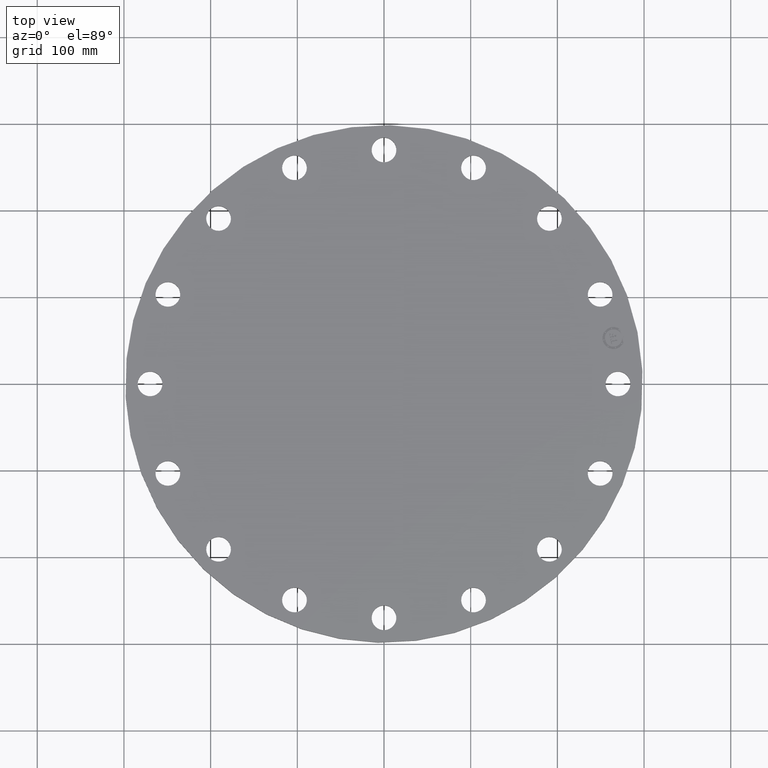
[diagram: clean part render]
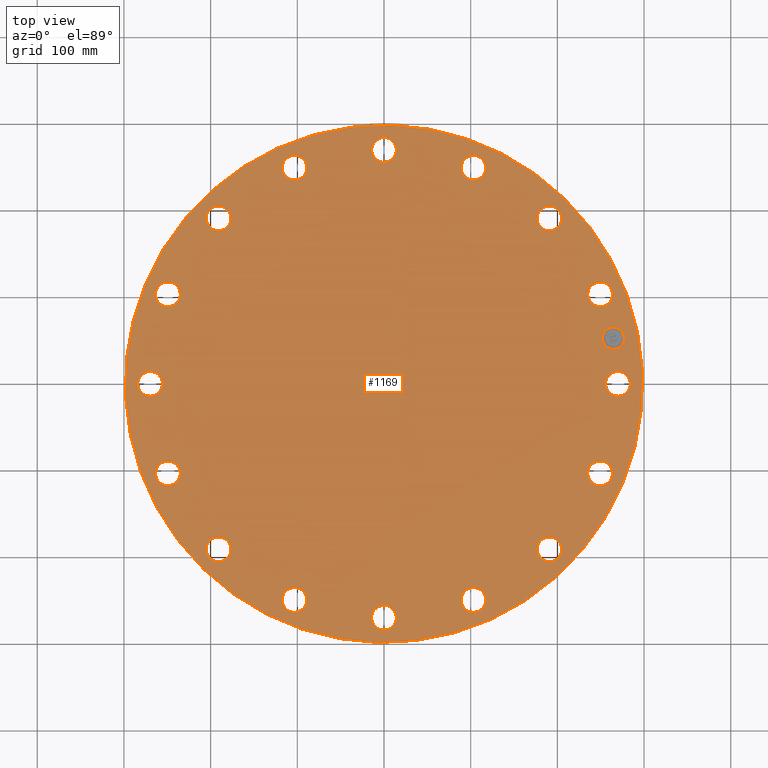
[diagram: same view with one face highlighted and labeled with its STEP entity id]
A machine part, top view. The second image highlights one B-rep face of the part: STEP entity #1169.
In plain terms, the highlighted planar face has unit normal (0, 0, 1).
Its self-contained STEP definition (entity closure, byte-faithful):
#65=AXIS2_PLACEMENT_3D('Circle Axis2P3D',#63,#64,$) ;
#82=AXIS2_PLACEMENT_3D('Circle Axis2P3D',#80,#81,$) ;
#108=AXIS2_PLACEMENT_3D('Circle Axis2P3D',#106,#107,$) ;
#134=AXIS2_PLACEMENT_3D('Circle Axis2P3D',#132,#133,$) ;
#454=AXIS2_PLACEMENT_3D('Circle Axis2P3D',#452,#453,$) ;
#466=AXIS2_PLACEMENT_3D('Circle Axis2P3D',#464,#465,$) ;
#497=AXIS2_PLACEMENT_3D('Circle Axis2P3D',#495,#496,$) ;
#509=AXIS2_PLACEMENT_3D('Circle Axis2P3D',#507,#508,$) ;
#540=AXIS2_PLACEMENT_3D('Circle Axis2P3D',#538,#539,$) ;
#552=AXIS2_PLACEMENT_3D('Circle Axis2P3D',#550,#551,$) ;
#583=AXIS2_PLACEMENT_3D('Circle Axis2P3D',#581,#582,$) ;
#595=AXIS2_PLACEMENT_3D('Circle Axis2P3D',#593,#594,$) ;
#626=AXIS2_PLACEMENT_3D('Circle Axis2P3D',#624,#625,$) ;
#638=AXIS2_PLACEMENT_3D('Circle Axis2P3D',#636,#637,$) ;
#669=AXIS2_PLACEMENT_3D('Circle Axis2P3D',#667,#668,$) ;
#681=AXIS2_PLACEMENT_3D('Circle Axis2P3D',#679,#680,$) ;
#712=AXIS2_PLACEMENT_3D('Circle Axis2P3D',#710,#711,$) ;
#724=AXIS2_PLACEMENT_3D('Circle Axis2P3D',#722,#723,$) ;
#755=AXIS2_PLACEMENT_3D('Circle Axis2P3D',#753,#754,$) ;
#767=AXIS2_PLACEMENT_3D('Circle Axis2P3D',#765,#766,$) ;
#798=AXIS2_PLACEMENT_3D('Circle Axis2P3D',#796,#797,$) ;
#810=AXIS2_PLACEMENT_3D('Circle Axis2P3D',#808,#809,$) ;
#841=AXIS2_PLACEMENT_3D('Circle Axis2P3D',#839,#840,$) ;
#853=AXIS2_PLACEMENT_3D('Circle Axis2P3D',#851,#852,$) ;
#884=AXIS2_PLACEMENT_3D('Circle Axis2P3D',#882,#883,$) ;
#896=AXIS2_PLACEMENT_3D('Circle Axis2P3D',#894,#895,$) ;
#927=AXIS2_PLACEMENT_3D('Circle Axis2P3D',#925,#926,$) ;
#939=AXIS2_PLACEMENT_3D('Circle Axis2P3D',#937,#938,$) ;
#970=AXIS2_PLACEMENT_3D('Circle Axis2P3D',#968,#969,$) ;
#982=AXIS2_PLACEMENT_3D('Circle Axis2P3D',#980,#981,$) ;
#1013=AXIS2_PLACEMENT_3D('Circle Axis2P3D',#1011,#1012,$) ;
#1025=AXIS2_PLACEMENT_3D('Circle Axis2P3D',#1023,#1024,$) ;
#1056=AXIS2_PLACEMENT_3D('Circle Axis2P3D',#1054,#1055,$) ;
#1068=AXIS2_PLACEMENT_3D('Circle Axis2P3D',#1066,#1067,$) ;
#1081=AXIS2_PLACEMENT_3D('Plane Axis2P3D',#1078,#1079,#1080) ;
#1153=AXIS2_PLACEMENT_3D('Circle Axis2P3D',#1151,#1152,$) ;
#1162=AXIS2_PLACEMENT_3D('Circle Axis2P3D',#1160,#1161,$) ;
#46=CARTESIAN_POINT('Vertex',(10.131359809,0.269676865466,0.892000000004)) ;
#60=CARTESIAN_POINT('Vertex',(11.1186401911,-0.269676865466,0.892000000004)) ;
#63=CARTESIAN_POINT('Axis2P3D Location',(10.625,0.,0.892000000004)) ;
#80=CARTESIAN_POINT('Axis2P3D Location',(10.625,0.,0.892000000004)) ;
#103=CARTESIAN_POINT('Vertex',(10.3115951023,5.63325007862,0.892000000004)) ;
#106=CARTESIAN_POINT('Axis2P3D Location',(0.,0.,0.892000000004)) ;
#110=CARTESIAN_POINT('Vertex',(-10.3115951023,-5.63325007862,0.892000000004)) ;
#132=CARTESIAN_POINT('Axis2P3D Location',(0.,0.,0.892000000004)) ;
#442=CARTESIAN_POINT('Vertex',(9.25695509552,4.12625248262,0.892000000004)) ;
#449=CARTESIAN_POINT('Vertex',(10.3754849704,4.00577045517,0.892000000004)) ;
#452=CARTESIAN_POINT('Axis2P3D Location',(9.81622003297,4.0660114689,0.892000000004)) ;
#464=CARTESIAN_POINT('Axis2P3D Location',(9.81622003297,4.0660114689,0.892000000004)) ;
#485=CARTESIAN_POINT('Vertex',(6.97326288327,7.35464356387,0.892000000004)) ;
#492=CARTESIAN_POINT('Vertex',(8.05275621701,7.67137553641,0.892000000004)) ;
#495=CARTESIAN_POINT('Axis2P3D Location',(7.51300955014,7.51300955014,0.892000000004)) ;
#507=CARTESIAN_POINT('Axis2P3D Location',(7.51300955014,7.51300955014,0.892000000004)) ;
#528=CARTESIAN_POINT('Vertex',(3.62795460983,9.46335683253,0.892000000004)) ;
#535=CARTESIAN_POINT('Vertex',(4.50406832796,10.1690832334,0.892000000004)) ;
#538=CARTESIAN_POINT('Axis2P3D Location',(4.0660114689,9.81622003297,0.892000000004)) ;
#550=CARTESIAN_POINT('Axis2P3D Location',(4.0660114689,9.81622003297,0.892000000004)) ;
#571=CARTESIAN_POINT('Vertex',(-0.269676865466,10.131359809,0.892000000004)) ;
#578=CARTESIAN_POINT('Vertex',(0.269676865466,11.1186401911,0.892000000004)) ;
#581=CARTESIAN_POINT('Axis2P3D Location',(-1.58733626436E-015,10.625,0.892000000004)) ;
#593=CARTESIAN_POINT('Axis2P3D Location',(-1.58733626436E-015,10.625,0.892000000004)) ;
#614=CARTESIAN_POINT('Vertex',(-4.12625248262,9.25695509552,0.892000000004)) ;
#621=CARTESIAN_POINT('Vertex',(-4.00577045517,10.3754849704,0.892000000004)) ;
#624=CARTESIAN_POINT('Axis2P3D Location',(-4.0660114689,9.81622003297,0.892000000004)) ;
#636=CARTESIAN_POINT('Axis2P3D Location',(-4.0660114689,9.81622003297,0.892000000004)) ;
#657=CARTESIAN_POINT('Vertex',(-7.35464356387,6.97326288327,0.892000000004)) ;
#664=CARTESIAN_POINT('Vertex',(-7.67137553641,8.05275621701,0.892000000004)) ;
#667=CARTESIAN_POINT('Axis2P3D Location',(-7.51300955014,7.51300955014,0.892000000004)) ;
#679=CARTESIAN_POINT('Axis2P3D Location',(-7.51300955014,7.51300955014,0.892000000004)) ;
#700=CARTESIAN_POINT('Vertex',(-9.46335683253,3.62795460983,0.892000000004)) ;
#707=CARTESIAN_POINT('Vertex',(-10.1690832334,4.50406832796,0.892000000004)) ;
#710=CARTESIAN_POINT('Axis2P3D Location',(-9.81622003297,4.0660114689,0.892000000004)) ;
#722=CARTESIAN_POINT('Axis2P3D Location',(-9.81622003297,4.0660114689,0.892000000004)) ;
#743=CARTESIAN_POINT('Vertex',(-10.131359809,-0.269676865466,0.892000000004)) ;
#750=CARTESIAN_POINT('Vertex',(-11.1186401911,0.269676865466,0.892000000004)) ;
#753=CARTESIAN_POINT('Axis2P3D Location',(-10.625,1.3011872241E-015,0.892000000004)) ;
#765=CARTESIAN_POINT('Axis2P3D Location',(-10.625,1.3011872241E-015,0.892000000004)) ;
#786=CARTESIAN_POINT('Vertex',(-9.25695509552,-4.12625248262,0.892000000004)) ;
#793=CARTESIAN_POINT('Vertex',(-10.3754849704,-4.00577045517,0.892000000004)) ;
#796=CARTESIAN_POINT('Axis2P3D Location',(-9.81622003297,-4.0660114689,0.892000000004)) ;
#808=CARTESIAN_POINT('Axis2P3D Location',(-9.81622003297,-4.0660114689,0.892000000004)) ;
#829=CARTESIAN_POINT('Vertex',(-6.97326288327,-7.35464356387,0.892000000004)) ;
#836=CARTESIAN_POINT('Vertex',(-8.05275621701,-7.67137553641,0.892000000004)) ;
#839=CARTESIAN_POINT('Axis2P3D Location',(-7.51300955014,-7.51300955014,0.892000000004)) ;
#851=CARTESIAN_POINT('Axis2P3D Location',(-7.51300955014,-7.51300955014,0.892000000004)) ;
#872=CARTESIAN_POINT('Vertex',(-3.62795460983,-9.46335683253,0.892000000004)) ;
#879=CARTESIAN_POINT('Vertex',(-4.50406832796,-10.1690832334,0.892000000004)) ;
#882=CARTESIAN_POINT('Axis2P3D Location',(-4.0660114689,-9.81622003297,0.892000000004)) ;
#894=CARTESIAN_POINT('Axis2P3D Location',(-4.0660114689,-9.81622003297,0.892000000004)) ;
#915=CARTESIAN_POINT('Vertex',(0.269676865466,-10.131359809,0.892000000004)) ;
#922=CARTESIAN_POINT('Vertex',(-0.269676865466,-11.1186401911,0.892000000004)) ;
#925=CARTESIAN_POINT('Axis2P3D Location',(-1.95178083615E-015,-10.625,0.892000000004)) ;
#937=CARTESIAN_POINT('Axis2P3D Location',(-1.95178083615E-015,-10.625,0.892000000004)) ;
#958=CARTESIAN_POINT('Vertex',(4.12625248262,-9.25695509552,0.892000000004)) ;
#965=CARTESIAN_POINT('Vertex',(4.00577045517,-10.3754849704,0.892000000004)) ;
#968=CARTESIAN_POINT('Axis2P3D Location',(4.0660114689,-9.81622003297,0.892000000004)) ;
#980=CARTESIAN_POINT('Axis2P3D Location',(4.0660114689,-9.81622003297,0.892000000004)) ;
#1001=CARTESIAN_POINT('Vertex',(7.35464356387,-6.97326288327,0.892000000004)) ;
#1008=CARTESIAN_POINT('Vertex',(7.67137553641,-8.05275621701,0.892000000004)) ;
#1011=CARTESIAN_POINT('Axis2P3D Location',(7.51300955014,-7.51300955014,0.892000000004)) ;
#1023=CARTESIAN_POINT('Axis2P3D Location',(7.51300955014,-7.51300955014,0.892000000004)) ;
#1044=CARTESIAN_POINT('Vertex',(9.46335683253,-3.62795460983,0.892000000004)) ;
#1051=CARTESIAN_POINT('Vertex',(10.1690832334,-4.50406832796,0.892000000004)) ;
#1054=CARTESIAN_POINT('Axis2P3D Location',(9.81622003297,-4.0660114689,0.892000000004)) ;
#1066=CARTESIAN_POINT('Axis2P3D Location',(9.81622003297,-4.0660114689,0.892000000004)) ;
#1078=CARTESIAN_POINT('Axis2P3D Location',(11.75,0.,0.892000000004)) ;
#1151=CARTESIAN_POINT('Axis2P3D Location',(10.4208436043,2.07283467143,0.892000000004)) ;
#1155=CARTESIAN_POINT('Vertex',(10.3232984443,2.56322730673,0.892000000004)) ;
#1157=CARTESIAN_POINT('Vertex',(10.5183887644,1.58244203613,0.892000000004)) ;
#1160=CARTESIAN_POINT('Axis2P3D Location',(10.4208436043,2.07283467143,0.892000000004)) ;
#64=DIRECTION('Axis2P3D Direction',(0.,-0.,-0.0393700787402)) ;
#81=DIRECTION('Axis2P3D Direction',(0.,-0.,-0.0393700787402)) ;
#107=DIRECTION('Axis2P3D Direction',(0.,0.,0.0393700787402)) ;
#133=DIRECTION('Axis2P3D Direction',(0.,0.,0.0393700787402)) ;
#453=DIRECTION('Axis2P3D Direction',(0.,0.,-0.0393700787402)) ;
#465=DIRECTION('Axis2P3D Direction',(0.,0.,-0.0393700787402)) ;
#496=DIRECTION('Axis2P3D Direction',(0.,0.,-0.0393700787402)) ;
#508=DIRECTION('Axis2P3D Direction',(0.,0.,-0.0393700787402)) ;
#539=DIRECTION('Axis2P3D Direction',(0.,0.,-0.0393700787402)) ;
#551=DIRECTION('Axis2P3D Direction',(0.,0.,-0.0393700787402)) ;
#582=DIRECTION('Axis2P3D Direction',(0.,0.,-0.0393700787402)) ;
#594=DIRECTION('Axis2P3D Direction',(0.,0.,-0.0393700787402)) ;
#625=DIRECTION('Axis2P3D Direction',(0.,0.,-0.0393700787402)) ;
#637=DIRECTION('Axis2P3D Direction',(0.,0.,-0.0393700787402)) ;
#668=DIRECTION('Axis2P3D Direction',(0.,0.,-0.0393700787402)) ;
#680=DIRECTION('Axis2P3D Direction',(0.,0.,-0.0393700787402)) ;
#711=DIRECTION('Axis2P3D Direction',(0.,0.,-0.0393700787402)) ;
#723=DIRECTION('Axis2P3D Direction',(0.,0.,-0.0393700787402)) ;
#754=DIRECTION('Axis2P3D Direction',(0.,0.,-0.0393700787402)) ;
#766=DIRECTION('Axis2P3D Direction',(0.,0.,-0.0393700787402)) ;
#797=DIRECTION('Axis2P3D Direction',(-0.,0.,-0.0393700787402)) ;
#809=DIRECTION('Axis2P3D Direction',(-0.,0.,-0.0393700787402)) ;
#840=DIRECTION('Axis2P3D Direction',(-0.,0.,-0.0393700787402)) ;
#852=DIRECTION('Axis2P3D Direction',(-0.,0.,-0.0393700787402)) ;
#883=DIRECTION('Axis2P3D Direction',(-0.,0.,-0.0393700787402)) ;
#895=DIRECTION('Axis2P3D Direction',(-0.,0.,-0.0393700787402)) ;
#926=DIRECTION('Axis2P3D Direction',(-0.,0.,-0.0393700787402)) ;
#938=DIRECTION('Axis2P3D Direction',(-0.,0.,-0.0393700787402)) ;
#969=DIRECTION('Axis2P3D Direction',(0.,-0.,-0.0393700787402)) ;
#981=DIRECTION('Axis2P3D Direction',(0.,-0.,-0.0393700787402)) ;
#1012=DIRECTION('Axis2P3D Direction',(0.,-0.,-0.0393700787402)) ;
#1024=DIRECTION('Axis2P3D Direction',(0.,-0.,-0.0393700787402)) ;
#1055=DIRECTION('Axis2P3D Direction',(0.,-0.,-0.0393700787402)) ;
#1067=DIRECTION('Axis2P3D Direction',(0.,-0.,-0.0393700787402)) ;
#1079=DIRECTION('Axis2P3D Direction',(0.,0.,0.0393700787402)) ;
#1080=DIRECTION('Axis2P3D XDirection',(0.0393700787402,0.,0.)) ;
#1152=DIRECTION('Axis2P3D Direction',(0.,0.,0.0393700787402)) ;
#1161=DIRECTION('Axis2P3D Direction',(0.,0.,0.0393700787402)) ;
#1084=ORIENTED_EDGE('',*,*,#112,.T.) ;
#1085=ORIENTED_EDGE('',*,*,#136,.T.) ;
#1088=ORIENTED_EDGE('',*,*,#84,.F.) ;
#1089=ORIENTED_EDGE('',*,*,#67,.F.) ;
#1092=ORIENTED_EDGE('',*,*,#456,.F.) ;
#1093=ORIENTED_EDGE('',*,*,#468,.F.) ;
#1096=ORIENTED_EDGE('',*,*,#499,.F.) ;
#1097=ORIENTED_EDGE('',*,*,#511,.F.) ;
#1100=ORIENTED_EDGE('',*,*,#542,.F.) ;
#1101=ORIENTED_EDGE('',*,*,#554,.F.) ;
#1104=ORIENTED_EDGE('',*,*,#585,.F.) ;
#1105=ORIENTED_EDGE('',*,*,#597,.F.) ;
#1108=ORIENTED_EDGE('',*,*,#628,.F.) ;
#1109=ORIENTED_EDGE('',*,*,#640,.F.) ;
#1112=ORIENTED_EDGE('',*,*,#671,.F.) ;
#1113=ORIENTED_EDGE('',*,*,#683,.F.) ;
#1116=ORIENTED_EDGE('',*,*,#714,.F.) ;
#1117=ORIENTED_EDGE('',*,*,#726,.F.) ;
#1120=ORIENTED_EDGE('',*,*,#757,.F.) ;
#1121=ORIENTED_EDGE('',*,*,#769,.F.) ;
#1124=ORIENTED_EDGE('',*,*,#800,.F.) ;
#1125=ORIENTED_EDGE('',*,*,#812,.F.) ;
#1128=ORIENTED_EDGE('',*,*,#843,.F.) ;
#1129=ORIENTED_EDGE('',*,*,#855,.F.) ;
#1132=ORIENTED_EDGE('',*,*,#886,.F.) ;
#1133=ORIENTED_EDGE('',*,*,#898,.F.) ;
#1136=ORIENTED_EDGE('',*,*,#929,.F.) ;
#1137=ORIENTED_EDGE('',*,*,#941,.F.) ;
#1140=ORIENTED_EDGE('',*,*,#972,.F.) ;
#1141=ORIENTED_EDGE('',*,*,#984,.F.) ;
#1144=ORIENTED_EDGE('',*,*,#1015,.F.) ;
#1145=ORIENTED_EDGE('',*,*,#1027,.F.) ;
#1148=ORIENTED_EDGE('',*,*,#1058,.F.) ;
#1149=ORIENTED_EDGE('',*,*,#1070,.F.) ;
#1166=ORIENTED_EDGE('',*,*,#1159,.F.) ;
#1167=ORIENTED_EDGE('',*,*,#1164,.F.) ;
#1090=FACE_BOUND('',#1087,.T.) ;
#1094=FACE_BOUND('',#1091,.T.) ;
#1098=FACE_BOUND('',#1095,.T.) ;
#1102=FACE_BOUND('',#1099,.T.) ;
#1106=FACE_BOUND('',#1103,.T.) ;
#1110=FACE_BOUND('',#1107,.T.) ;
#1114=FACE_BOUND('',#1111,.T.) ;
#1118=FACE_BOUND('',#1115,.T.) ;
#1122=FACE_BOUND('',#1119,.T.) ;
#1126=FACE_BOUND('',#1123,.T.) ;
#1130=FACE_BOUND('',#1127,.T.) ;
#1134=FACE_BOUND('',#1131,.T.) ;
#1138=FACE_BOUND('',#1135,.T.) ;
#1142=FACE_BOUND('',#1139,.T.) ;
#1146=FACE_BOUND('',#1143,.T.) ;
#1150=FACE_BOUND('',#1147,.T.) ;
#1168=FACE_BOUND('',#1165,.T.) ;
#1169=ADVANCED_FACE('PartBody',(#1086,#1090,#1094,#1098,#1102,#1106,#1110,#1114,#1118,#1122,#1126,#1130,#1134,#1138,#1142,#1146,#1150,#1168),#1082,.T.) ;
#66=CIRCLE('generated circle',#65,0.562500000002) ;
#83=CIRCLE('generated circle',#82,0.562500000002) ;
#109=CIRCLE('generated circle',#108,11.75) ;
#135=CIRCLE('generated circle',#134,11.75) ;
#455=CIRCLE('generated circle',#454,0.562500000002) ;
#467=CIRCLE('generated circle',#466,0.562500000002) ;
#498=CIRCLE('generated circle',#497,0.562500000002) ;
#510=CIRCLE('generated circle',#509,0.562500000002) ;
#541=CIRCLE('generated circle',#540,0.562500000002) ;
#553=CIRCLE('generated circle',#552,0.562500000002) ;
#584=CIRCLE('generated circle',#583,0.562500000002) ;
#596=CIRCLE('generated circle',#595,0.562500000002) ;
#627=CIRCLE('generated circle',#626,0.562500000002) ;
#639=CIRCLE('generated circle',#638,0.562500000002) ;
#670=CIRCLE('generated circle',#669,0.562500000002) ;
#682=CIRCLE('generated circle',#681,0.562500000002) ;
#713=CIRCLE('generated circle',#712,0.562500000002) ;
#725=CIRCLE('generated circle',#724,0.562500000002) ;
#756=CIRCLE('generated circle',#755,0.562500000002) ;
#768=CIRCLE('generated circle',#767,0.562500000002) ;
#799=CIRCLE('generated circle',#798,0.562500000002) ;
#811=CIRCLE('generated circle',#810,0.562500000002) ;
#842=CIRCLE('generated circle',#841,0.562500000002) ;
#854=CIRCLE('generated circle',#853,0.562500000002) ;
#885=CIRCLE('generated circle',#884,0.562500000002) ;
#897=CIRCLE('generated circle',#896,0.562500000002) ;
#928=CIRCLE('generated circle',#927,0.562500000002) ;
#940=CIRCLE('generated circle',#939,0.562500000002) ;
#971=CIRCLE('generated circle',#970,0.562500000002) ;
#983=CIRCLE('generated circle',#982,0.562500000002) ;
#1014=CIRCLE('generated circle',#1013,0.562500000002) ;
#1026=CIRCLE('generated circle',#1025,0.562500000002) ;
#1057=CIRCLE('generated circle',#1056,0.562500000002) ;
#1069=CIRCLE('generated circle',#1068,0.562500000002) ;
#1154=CIRCLE('generated circle',#1153,0.499999995002) ;
#1163=CIRCLE('generated circle',#1162,0.499999995002) ;
#67=EDGE_CURVE('',#61,#47,#66,.F.) ;
#84=EDGE_CURVE('',#47,#61,#83,.F.) ;
#112=EDGE_CURVE('',#111,#104,#109,.T.) ;
#136=EDGE_CURVE('',#104,#111,#135,.T.) ;
#456=EDGE_CURVE('',#450,#443,#455,.F.) ;
#468=EDGE_CURVE('',#443,#450,#467,.F.) ;
#499=EDGE_CURVE('',#493,#486,#498,.F.) ;
#511=EDGE_CURVE('',#486,#493,#510,.F.) ;
#542=EDGE_CURVE('',#536,#529,#541,.F.) ;
#554=EDGE_CURVE('',#529,#536,#553,.F.) ;
#585=EDGE_CURVE('',#579,#572,#584,.F.) ;
#597=EDGE_CURVE('',#572,#579,#596,.F.) ;
#628=EDGE_CURVE('',#622,#615,#627,.F.) ;
#640=EDGE_CURVE('',#615,#622,#639,.F.) ;
#671=EDGE_CURVE('',#665,#658,#670,.F.) ;
#683=EDGE_CURVE('',#658,#665,#682,.F.) ;
#714=EDGE_CURVE('',#708,#701,#713,.F.) ;
#726=EDGE_CURVE('',#701,#708,#725,.F.) ;
#757=EDGE_CURVE('',#751,#744,#756,.F.) ;
#769=EDGE_CURVE('',#744,#751,#768,.F.) ;
#800=EDGE_CURVE('',#794,#787,#799,.F.) ;
#812=EDGE_CURVE('',#787,#794,#811,.F.) ;
#843=EDGE_CURVE('',#837,#830,#842,.F.) ;
#855=EDGE_CURVE('',#830,#837,#854,.F.) ;
#886=EDGE_CURVE('',#880,#873,#885,.F.) ;
#898=EDGE_CURVE('',#873,#880,#897,.F.) ;
#929=EDGE_CURVE('',#923,#916,#928,.F.) ;
#941=EDGE_CURVE('',#916,#923,#940,.F.) ;
#972=EDGE_CURVE('',#966,#959,#971,.F.) ;
#984=EDGE_CURVE('',#959,#966,#983,.F.) ;
#1015=EDGE_CURVE('',#1009,#1002,#1014,.F.) ;
#1027=EDGE_CURVE('',#1002,#1009,#1026,.F.) ;
#1058=EDGE_CURVE('',#1052,#1045,#1057,.F.) ;
#1070=EDGE_CURVE('',#1045,#1052,#1069,.F.) ;
#1159=EDGE_CURVE('',#1156,#1158,#1154,.T.) ;
#1164=EDGE_CURVE('',#1158,#1156,#1163,.T.) ;
#1083=EDGE_LOOP('',(#1084,#1085)) ;
#1087=EDGE_LOOP('',(#1088,#1089)) ;
#1091=EDGE_LOOP('',(#1092,#1093)) ;
#1095=EDGE_LOOP('',(#1096,#1097)) ;
#1099=EDGE_LOOP('',(#1100,#1101)) ;
#1103=EDGE_LOOP('',(#1104,#1105)) ;
#1107=EDGE_LOOP('',(#1108,#1109)) ;
#1111=EDGE_LOOP('',(#1112,#1113)) ;
#1115=EDGE_LOOP('',(#1116,#1117)) ;
#1119=EDGE_LOOP('',(#1120,#1121)) ;
#1123=EDGE_LOOP('',(#1124,#1125)) ;
#1127=EDGE_LOOP('',(#1128,#1129)) ;
#1131=EDGE_LOOP('',(#1132,#1133)) ;
#1135=EDGE_LOOP('',(#1136,#1137)) ;
#1139=EDGE_LOOP('',(#1140,#1141)) ;
#1143=EDGE_LOOP('',(#1144,#1145)) ;
#1147=EDGE_LOOP('',(#1148,#1149)) ;
#1165=EDGE_LOOP('',(#1166,#1167)) ;
#1086=FACE_OUTER_BOUND('',#1083,.T.) ;
#1082=PLANE('',#1081) ;
#47=VERTEX_POINT('',#46) ;
#61=VERTEX_POINT('',#60) ;
#104=VERTEX_POINT('',#103) ;
#111=VERTEX_POINT('',#110) ;
#443=VERTEX_POINT('',#442) ;
#450=VERTEX_POINT('',#449) ;
#486=VERTEX_POINT('',#485) ;
#493=VERTEX_POINT('',#492) ;
#529=VERTEX_POINT('',#528) ;
#536=VERTEX_POINT('',#535) ;
#572=VERTEX_POINT('',#571) ;
#579=VERTEX_POINT('',#578) ;
#615=VERTEX_POINT('',#614) ;
#622=VERTEX_POINT('',#621) ;
#658=VERTEX_POINT('',#657) ;
#665=VERTEX_POINT('',#664) ;
#701=VERTEX_POINT('',#700) ;
#708=VERTEX_POINT('',#707) ;
#744=VERTEX_POINT('',#743) ;
#751=VERTEX_POINT('',#750) ;
#787=VERTEX_POINT('',#786) ;
#794=VERTEX_POINT('',#793) ;
#830=VERTEX_POINT('',#829) ;
#837=VERTEX_POINT('',#836) ;
#873=VERTEX_POINT('',#872) ;
#880=VERTEX_POINT('',#879) ;
#916=VERTEX_POINT('',#915) ;
#923=VERTEX_POINT('',#922) ;
#959=VERTEX_POINT('',#958) ;
#966=VERTEX_POINT('',#965) ;
#1002=VERTEX_POINT('',#1001) ;
#1009=VERTEX_POINT('',#1008) ;
#1045=VERTEX_POINT('',#1044) ;
#1052=VERTEX_POINT('',#1051) ;
#1156=VERTEX_POINT('',#1155) ;
#1158=VERTEX_POINT('',#1157) ;